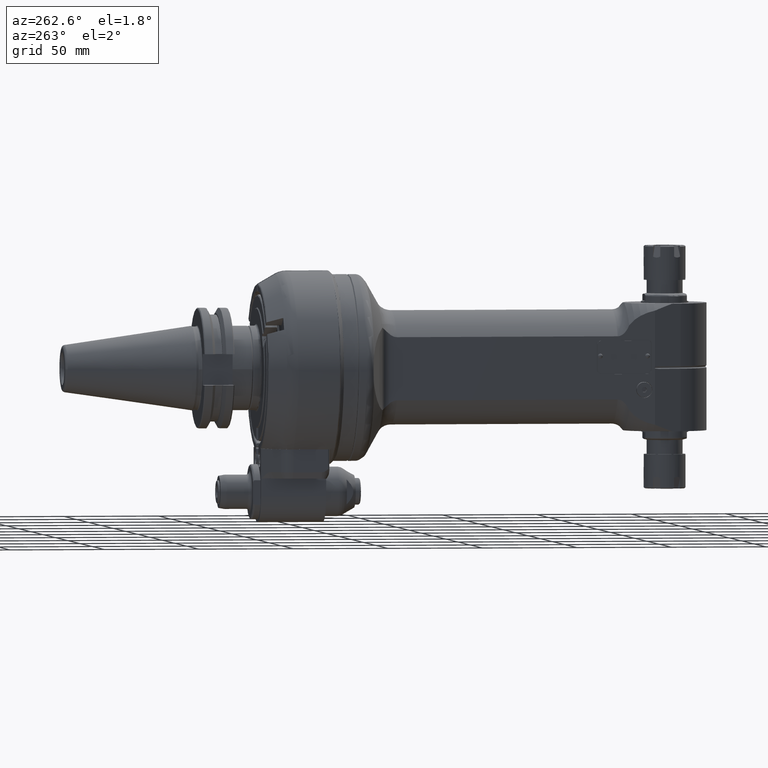
[diagram: clean part render]
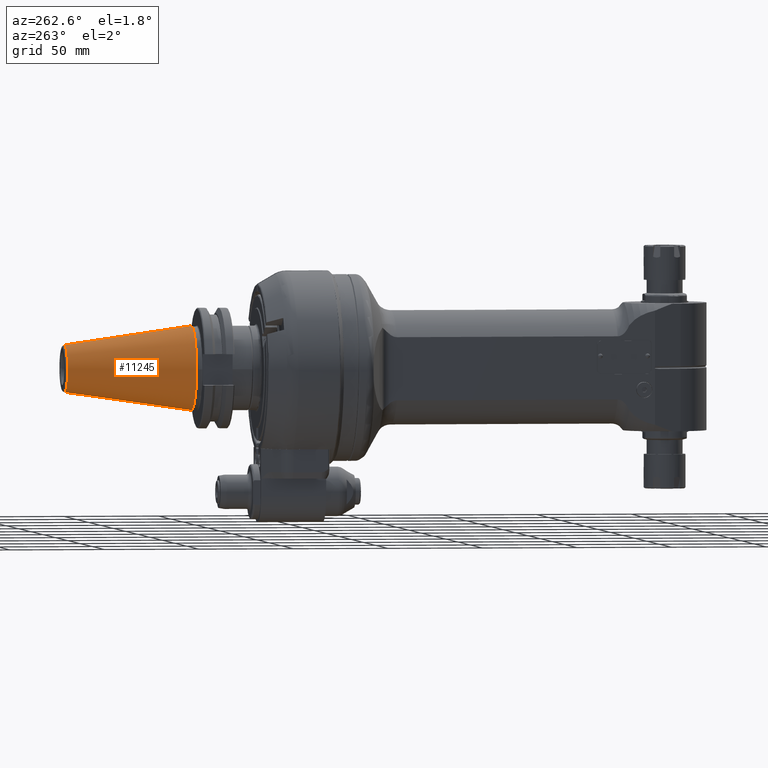
[diagram: same view with one face highlighted and labeled with its STEP entity id]
A machine part, auxiliary view. The second image highlights one B-rep face of the part: STEP entity #11245.
In plain terms, the highlighted conical surface has half-angle 8.297 deg.
Its self-contained STEP definition (entity closure, byte-faithful):
#205=CONICAL_SURFACE('',#12556,0.682757161774016,0.144812411498922);
#1467=FACE_OUTER_BOUND('',#2207,.T.);
#2207=EDGE_LOOP('',(#10188,#10189,#10190,#10191,#10192));
#3013=LINE('',#22610,#3761);
#3761=VECTOR('',#15747,0.682757161774016);
#4376=CIRCLE('',#12555,0.875);
#4377=CIRCLE('',#12557,0.490514323548032);
#4378=CIRCLE('',#12558,0.490514323548032);
#5429=VERTEX_POINT('',#22605);
#5430=VERTEX_POINT('',#22609);
#5431=VERTEX_POINT('',#22611);
#7032=EDGE_CURVE('',#5429,#5429,#4376,.T.);
#7034=EDGE_CURVE('',#5429,#5430,#3013,.T.);
#7035=EDGE_CURVE('',#5431,#5430,#4377,.T.);
#7036=EDGE_CURVE('',#5430,#5431,#4378,.T.);
#10188=ORIENTED_EDGE('',*,*,#7032,.F.);
#10189=ORIENTED_EDGE('',*,*,#7034,.T.);
#10190=ORIENTED_EDGE('',*,*,#7035,.F.);
#10191=ORIENTED_EDGE('',*,*,#7036,.F.);
#10192=ORIENTED_EDGE('',*,*,#7034,.F.);
#11245=ADVANCED_FACE('',(#1467),#205,.T.);
#12555=AXIS2_PLACEMENT_3D('',#22606,#15742,#15743);
#12556=AXIS2_PLACEMENT_3D('',#22608,#15745,#15746);
#12557=AXIS2_PLACEMENT_3D('',#22612,#15748,#15749);
#12558=AXIS2_PLACEMENT_3D('',#22613,#15750,#15751);
#15742=DIRECTION('center_axis',(0.,-1.,0.));
#15743=DIRECTION('ref_axis',(1.,0.,0.));
#15745=DIRECTION('center_axis',(0.,-1.,0.));
#15746=DIRECTION('ref_axis',(-1.,0.,0.));
#15747=DIRECTION('',(-0.144306807239621,0.98953299358046,-1.76724869581176E-17));
#15748=DIRECTION('center_axis',(0.,1.,0.));
#15749=DIRECTION('ref_axis',(1.,0.,0.));
#15750=DIRECTION('center_axis',(0.,1.,0.));
#15751=DIRECTION('ref_axis',(1.,0.,0.));
#22605=CARTESIAN_POINT('',(0.874999999999872,2.93307086614177,-1.07156594925378E-16));
#22606=CARTESIAN_POINT('Origin',(0.,2.93307086614173,0.));
#22608=CARTESIAN_POINT('Origin',(0.,4.25130827186614,0.));
#22609=CARTESIAN_POINT('',(0.490514323548032,5.56954567759449,0.));
#22610=CARTESIAN_POINT('',(0.682757161774016,4.25130827186614,8.3613637276148E-17));
#22611=CARTESIAN_POINT('',(-0.490514323548032,5.56954567759449,-6.00706796269026E-17));
#22612=CARTESIAN_POINT('Origin',(0.,5.56954567759449,0.));
#22613=CARTESIAN_POINT('Origin',(0.,5.56954567759449,0.));